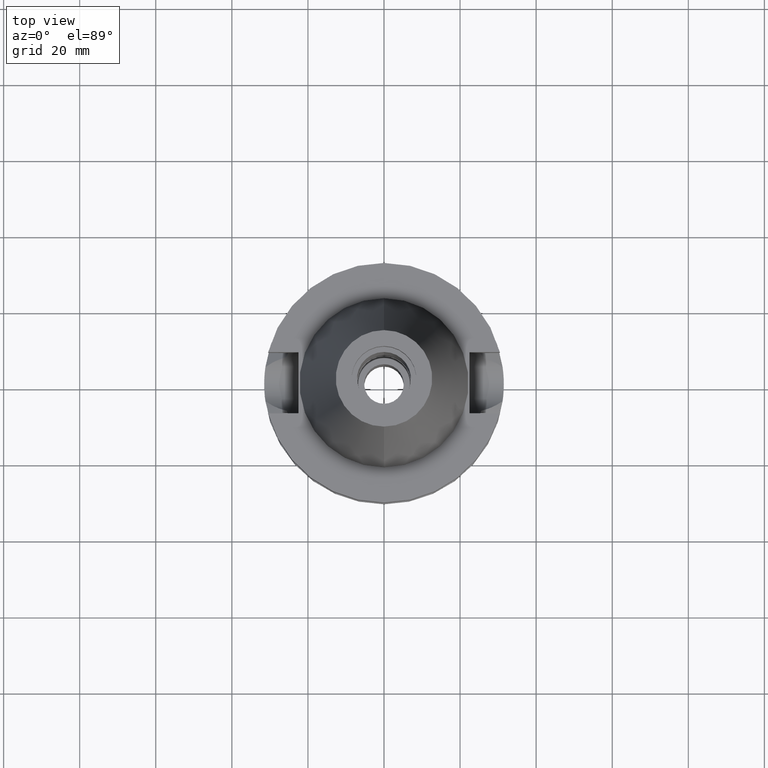
[diagram: clean part render]
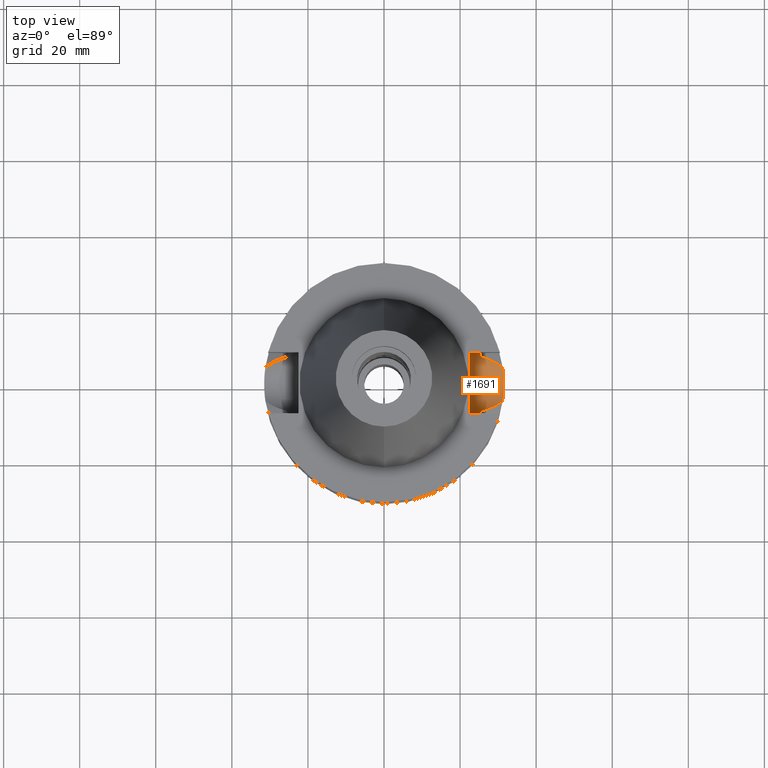
[diagram: same view with one face highlighted and labeled with its STEP entity id]
A machine part, top view. The second image highlights one B-rep face of the part: STEP entity #1691.
In plain terms, the highlighted cylindrical surface (edge-blend (fillet) strip) has radius 8.05 mm, axis along (1, 0, 0).
Its self-contained STEP definition (entity closure, byte-faithful):
#21 = ORIENTED_EDGE ( 'NONE', *, *, #611, .F. ) ;
#64 = CARTESIAN_POINT ( 'NONE',  ( 25.25396284446427231, -8.030907492774097989, -15.59360398733918451 ) ) ;
#82 = CARTESIAN_POINT ( 'NONE',  ( 31.41697254242929205, 2.284015593780573727, -22.66919255136408395 ) ) ;
#92 = CARTESIAN_POINT ( 'NONE',  ( 31.41183231690596855, -2.353663757155681768, -22.64823938059620545 ) ) ;
#101 = CARTESIAN_POINT ( 'NONE',  ( 27.17454037590290739, 6.578573253527897791, -19.59008326671374789 ) ) ;
#104 = CARTESIAN_POINT ( 'NONE',  ( 31.38993145521942196, -2.631335983111909194, -22.55874663190329699 ) ) ;
#111 = CARTESIAN_POINT ( 'NONE',  ( 28.61952987472136201, -5.988409593767684669, -20.32928853261340052 ) ) ;
#123 = ORIENTED_EDGE ( 'NONE', *, *, #240, .T. ) ;
#147 = CARTESIAN_POINT ( 'NONE',  ( 26.74381619295357027, -6.764686498412363136, -19.37043794591426860 ) ) ;
#174 = CARTESIAN_POINT ( 'NONE',  ( 25.53175183775000079, -7.097862220092999941, -18.74774300138999905 ) ) ;
#175 = CARTESIAN_POINT ( 'NONE',  ( 28.96951744265465223, -5.822993042047945877, -20.50791940928598933 ) ) ;
#184 = CARTESIAN_POINT ( 'NONE',  ( 25.34384339545047737, 7.742469616379023201, -17.15619314850085431 ) ) ;
#240 = EDGE_CURVE ( 'NONE', #2843, #1842, #382, .T. ) ;
#307 = CARTESIAN_POINT ( 'NONE',  ( 31.47113333814916558, 1.356640495464844109, -22.88731189956133960 ) ) ;
#329 = VERTEX_POINT ( 'NONE', #174 ) ;
#367 = CARTESIAN_POINT ( 'NONE',  ( 26.07074023271755081, 6.949703546257505415, -19.02464690278512549 ) ) ;
#382 = CIRCLE ( 'NONE', #1644, 8.050000000000000711 ) ;
#385 = CARTESIAN_POINT ( 'NONE',  ( 28.50305473222086761, -6.041666333603841643, -20.26983013936102296 ) ) ;
#388 = CARTESIAN_POINT ( 'NONE',  ( 28.07278660594125697, 6.231564949985281210, -20.04918483782999061 ) ) ;
#399 = CARTESIAN_POINT ( 'NONE',  ( 28.73759522508826336, -5.933525848792730706, -20.38955323646145956 ) ) ;
#405 = CARTESIAN_POINT ( 'NONE',  ( 25.32415423298265722, 7.806459850231466824, -16.91522840168126152 ) ) ;
#519 = CARTESIAN_POINT ( 'NONE',  ( 31.44587474454343123, 1.845305156204674057, -22.78628520795651013 ) ) ;
#572 = CARTESIAN_POINT ( 'NONE',  ( 27.52172890951022666, 6.449314522211760270, -19.76755776848042956 ) ) ;
#576 = CARTESIAN_POINT ( 'NONE',  ( 22.50000000000000000, 8.050000000000000711, -14.94999999999999929 ) ) ;
#579 = ORIENTED_EDGE ( 'NONE', *, *, #2338, .F. ) ;
#591 = CARTESIAN_POINT ( 'NONE',  ( 25.53175183775000079, 7.097862220092999941, -18.74774300138999905 ) ) ;
#594 = CARTESIAN_POINT ( 'NONE',  ( 31.40205153632035717, -2.481143929229181921, -22.60832449609155148 ) ) ;
#610 = CARTESIAN_POINT ( 'NONE',  ( 31.50000030226999570, 4.149986401503999830E-14, -23.00000138148999795 ) ) ;
#611 = EDGE_CURVE ( 'NONE', #747, #329, #1766, .T. ) ;
#613 = CARTESIAN_POINT ( 'NONE',  ( 25.36814761471071833, -7.663830712965396863, -17.48803584493440155 ) ) ;
#619 = CARTESIAN_POINT ( 'NONE',  ( 28.53006094587165009, -6.029395381357314676, -20.28361679709920651 ) ) ;
#621 = CARTESIAN_POINT ( 'NONE',  ( 22.50000000000000000, 8.050000000000000711, -14.94999999999999929 ) ) ;
#639 = CARTESIAN_POINT ( 'NONE',  ( 25.53175183775000079, -7.097862220092999941, -18.74774300138999905 ) ) ;
#675 = CARTESIAN_POINT ( 'NONE',  ( 31.17899877608999759, 4.485536235554000051, -21.63449434733000132 ) ) ;
#690 = CARTESIAN_POINT ( 'NONE',  ( 25.32840589093493122, 7.792665650289850809, -16.96921537928767165 ) ) ;
#744 = EDGE_CURVE ( 'NONE', #2497, #1437, #2634, .T. ) ;
#747 = VERTEX_POINT ( 'NONE', #1478 ) ;
#792 = CARTESIAN_POINT ( 'NONE',  ( 25.27268336911707891, -7.971811480182260823, -16.08115959834935182 ) ) ;
#796 = EDGE_LOOP ( 'NONE', ( #2671, #959, #579, #123, #1258, #900, #21, #2788, #2043 ) ) ;
#811 = CARTESIAN_POINT ( 'NONE',  ( 28.33698381954231849, 6.118439081508567412, -20.18427628523262385 ) ) ;
#830 = CARTESIAN_POINT ( 'NONE',  ( 31.35450367999056809, -3.025551444408663748, -22.41216023105940991 ) ) ;
#869 = CARTESIAN_POINT ( 'NONE',  ( 31.40782472142095827, -2.406637570808294768, -22.63189169567762704 ) ) ;
#885 = CARTESIAN_POINT ( 'NONE',  ( 31.33671814113429122, -3.204274407606030550, -22.33747821317260573 ) ) ;
#900 = ORIENTED_EDGE ( 'NONE', *, *, #1169, .T. ) ;
#911 = CARTESIAN_POINT ( 'NONE',  ( 22.50000000000000000, -8.050000000000000711, -14.94999999999999929 ) ) ;
#918 = CARTESIAN_POINT ( 'NONE',  ( 25.39161474380841099, 7.584925632688388042, -17.65165132602217213 ) ) ;
#951 = CARTESIAN_POINT ( 'NONE',  ( 25.24772266958000344, 8.049999999999997158, -15.58981081119148193 ) ) ;
#959 = ORIENTED_EDGE ( 'NONE', *, *, #2434, .T. ) ;
#1007 = CARTESIAN_POINT ( 'NONE',  ( 31.49278356123977929, 0.7711873031710440030, -22.97267690006522400 ) ) ;
#1061 = CARTESIAN_POINT ( 'NONE',  ( 31.41519654756639568, 2.308329250097893581, -22.66195675239495699 ) ) ;
#1065 = LINE ( 'NONE', #1823, #1689 ) ;
#1069 = CARTESIAN_POINT ( 'NONE',  ( 31.50000030227000636, -0.7652255575728066361, -23.00000000000000711 ) ) ;
#1083 = CARTESIAN_POINT ( 'NONE',  ( 25.31648647172268340, -7.831300037042765894, -16.81378020971403231 ) ) ;
#1092 = CARTESIAN_POINT ( 'NONE',  ( 30.47191086479360322, 5.021981663703273924, -21.27452016210246200 ) ) ;
#1104 = CARTESIAN_POINT ( 'NONE',  ( 25.31950905643225980, -7.821515286679934675, -16.85442525727312812 ) ) ;
#1138 = CARTESIAN_POINT ( 'NONE',  ( 25.29452398121202350, -7.902090651792934572, -16.48828405102940664 ) ) ;
#1147 = CARTESIAN_POINT ( 'NONE',  ( 25.33288843118665312, 7.778112047386424699, -17.02510900864709598 ) ) ;
#1167 = CARTESIAN_POINT ( 'NONE',  ( 25.32546474064105979, 7.802209548897429237, -16.93201787082077203 ) ) ;
#1169 = EDGE_CURVE ( 'NONE', #1535, #329, #1673, .T. ) ;
#1192 = CARTESIAN_POINT ( 'NONE',  ( 25.48480653792046624, 7.266729367422243513, -18.43213561436577308 ) ) ;
#1254 = CARTESIAN_POINT ( 'NONE',  ( 25.24772266958000344, 8.050000000000000711, -14.94999999999999929 ) ) ;
#1258 = ORIENTED_EDGE ( 'NONE', *, *, #2841, .F. ) ;
#1269 = CARTESIAN_POINT ( 'NONE',  ( 25.24772266958000344, -8.050000000000000711, -14.94999999999999929 ) ) ;
#1287 = CARTESIAN_POINT ( 'NONE',  ( 31.42563404118526549, 2.162357063185814887, -22.70443063270441897 ) ) ;
#1299 = CARTESIAN_POINT ( 'NONE',  ( 22.50000000000000000, 0.0000000000000000000, -14.94999999999999929 ) ) ;
#1307 = CARTESIAN_POINT ( 'NONE',  ( 27.47178058606564477, 6.468331823088089294, -19.74203692051577619 ) ) ;
#1437 = VERTEX_POINT ( 'NONE', #675 ) ;
#1478 = CARTESIAN_POINT ( 'NONE',  ( 31.17899877608999759, -4.485536235554000051, -21.63449434733000132 ) ) ;
#1482 = VERTEX_POINT ( 'NONE', #1254 ) ;
#1493 = B_SPLINE_CURVE_WITH_KNOTS ( 'NONE', 3,
 ( #1812, #1547, #2533, #885, #830, #1774, #104, #594, #869, #1608, #92, #1559, #2546, #1069, #610 ),
 .UNSPECIFIED., .F., .F.,
 ( 4, 2, 2, 1, 1, 1, 2, 2, 4 ),
 ( 0.0000000000000000000, 0.2500000000000082712, 0.3750000000000119349, 0.4375000000000139888, 0.4687500000000150990, 0.4843750000000152101, 0.4921875000000149880, 0.5000000000000147660, 1.000000000000000000 ),
 .UNSPECIFIED. ) ;
#1515 = DIRECTION ( 'NONE',  ( 0.0000000000000000000, 0.0000000000000000000, -1.000000000000000000 ) ) ;
#1524 = CARTESIAN_POINT ( 'NONE',  ( 31.50000030226999570, 4.149986401503999830E-14, -23.00000138148999795 ) ) ;
#1535 = VERTEX_POINT ( 'NONE', #2757 ) ;
#1547 = CARTESIAN_POINT ( 'NONE',  ( 31.23205437646064198, -4.116746326781118626, -21.88196564630578678 ) ) ;
#1559 = CARTESIAN_POINT ( 'NONE',  ( 31.41250465254752910, -2.344685119767524029, -22.65098129005167849 ) ) ;
#1572 = CARTESIAN_POINT ( 'NONE',  ( 29.60940031211595169, 5.537070779265078180, -20.83476571954136958 ) ) ;
#1586 = CARTESIAN_POINT ( 'NONE',  ( 28.51721398832023624, -6.035237504180527957, -20.27705846290945857 ) ) ;
#1608 = CARTESIAN_POINT ( 'NONE',  ( 31.41023747458196524, -2.374835805101922048, -22.64173436498663605 ) ) ;
#1611 = CARTESIAN_POINT ( 'NONE',  ( 25.30212919435223284, -7.877667573970344783, -16.61042047323939741 ) ) ;
#1614 = CARTESIAN_POINT ( 'NONE',  ( 31.17899877608999759, -4.485536235554000051, -21.63449434733000132 ) ) ;
#1644 = AXIS2_PLACEMENT_3D ( 'NONE', #2191, #2719, #1515 ) ;
#1673 = B_SPLINE_CURVE_WITH_KNOTS ( 'NONE', 3,
 ( #1269, #2234, #64, #792, #2697, #1138, #1611, #2304, #1083, #1104, #2605, #613, #2093, #3080 ),
 .UNSPECIFIED., .F., .F.,
 ( 4, 2, 2, 1, 1, 2, 2, 4 ),
 ( 0.0000000000000000000, 0.2499999999999888978, 0.3749999999999832911, 0.4374999999999816813, 0.4687499999999808487, 0.4843749999999804046, 0.4999999999999800160, 1.000000000000000000 ),
 .UNSPECIFIED. ) ;
#1689 = VECTOR ( 'NONE', #3010, 1000.000000000000000 ) ;
#1691 = ADVANCED_FACE ( 'NONE', ( #1827 ), #2836, .F. ) ;
#1715 = CARTESIAN_POINT ( 'NONE',  ( 31.36324472125325613, 3.008186402923568981, -22.45010119757649392 ) ) ;
#1763 = CARTESIAN_POINT ( 'NONE',  ( 31.46211241186140128, 1.552211430364588640, -22.85146869861923236 ) ) ;
#1764 = EDGE_CURVE ( 'NONE', #747, #2497, #1493, .T. ) ;
#1766 = B_SPLINE_CURVE_WITH_KNOTS ( 'NONE', 3,
 ( #1614, #2072, #3057, #2358, #2095, #1821, #175, #399, #111, #2808, #619, #1586, #2578, #385, #1836, #147, #639 ),
 .UNSPECIFIED., .F., .F.,
 ( 4, 2, 2, 1, 1, 1, 1, 1, 2, 2, 4 ),
 ( 0.0000000000000000000, 0.2499999999999278910, 0.3749999999998925859, 0.4374999999998743783, 0.4687499999998654965, 0.4843749999998604450, 0.4921874999998579470, 0.4960937499998566702, 0.4980468749998568367, 0.4999999999998570033, 1.000000000000000000 ),
 .UNSPECIFIED. ) ;
#1774 = CARTESIAN_POINT ( 'NONE',  ( 31.37855930987626252, -2.761990093459803397, -22.51192666837109257 ) ) ;
#1812 = CARTESIAN_POINT ( 'NONE',  ( 31.17899877608999759, -4.485536235554000051, -21.63449434733000132 ) ) ;
#1821 = CARTESIAN_POINT ( 'NONE',  ( 29.16108406474739922, -5.727078292551732730, -20.60566772621288578 ) ) ;
#1823 = CARTESIAN_POINT ( 'NONE',  ( 25.24772266958000344, -8.050000000000000711, -14.94999999999999929 ) ) ;
#1827 = FACE_OUTER_BOUND ( 'NONE', #796, .T. ) ;
#1836 = CARTESIAN_POINT ( 'NONE',  ( 27.73413391209855305, -6.390229313855593674, -19.87729119561073432 ) ) ;
#1842 = VERTEX_POINT ( 'NONE', #911 ) ;
#1892 = CARTESIAN_POINT ( 'NONE',  ( 25.44390410195637742, 7.408324269918076688, -18.11690676764972352 ) ) ;
#1916 = CARTESIAN_POINT ( 'NONE',  ( 25.27267991477270215, 7.973333693868347005, -16.24500092433180498 ) ) ;
#1971 = VERTEX_POINT ( 'NONE', #2241 ) ;
#1974 = CARTESIAN_POINT ( 'NONE',  ( 31.28511117664742969, 3.747948078124208049, -22.12944254164047564 ) ) ;
#1986 = B_SPLINE_CURVE_WITH_KNOTS ( 'NONE', 3,
 ( #2367, #1192, #1892, #918, #2632, #2131, #184, #1147, #690, #1167, #405, #1916, #951, #2397 ),
 .UNSPECIFIED., .F., .F.,
 ( 4, 2, 2, 1, 1, 2, 2, 4 ),
 ( 0.0000000000000000000, 0.2500000000000011657, 0.3750000000000028311, 0.4375000000000037748, 0.4687500000000027756, 0.4843750000000024425, 0.5000000000000019984, 1.000000000000000000 ),
 .UNSPECIFIED. ) ;
#2015 = CARTESIAN_POINT ( 'NONE',  ( 27.50746881412250744, 6.454750626354698539, -19.76027182294631501 ) ) ;
#2021 = CARTESIAN_POINT ( 'NONE',  ( 31.41418307691772682, 2.322078179488806793, -22.65782554032157137 ) ) ;
#2040 = DIRECTION ( 'NONE',  ( 0.0000000000000000000, 0.0000000000000000000, -1.000000000000000000 ) ) ;
#2043 = ORIENTED_EDGE ( 'NONE', *, *, #744, .T. ) ;
#2055 = CARTESIAN_POINT ( 'NONE',  ( 27.55673681590003810, 6.435922820680607614, -19.78544436919851890 ) ) ;
#2072 = CARTESIAN_POINT ( 'NONE',  ( 30.83533554958475875, -4.746262750229630178, -21.45953747424909963 ) ) ;
#2093 = CARTESIAN_POINT ( 'NONE',  ( 25.43786330456364553, -7.435589081429987424, -18.11654211998960662 ) ) ;
#2095 = CARTESIAN_POINT ( 'NONE',  ( 29.53456838489935521, -5.534047291044670303, -20.79621982321736340 ) ) ;
#2131 = CARTESIAN_POINT ( 'NONE',  ( 25.35408314255054663, 7.708964442631086378, -17.26963666352914117 ) ) ;
#2191 = CARTESIAN_POINT ( 'NONE',  ( 22.50000000000000000, 0.0000000000000000000, -14.94999999999999929 ) ) ;
#2234 = CARTESIAN_POINT ( 'NONE',  ( 25.24772266958000699, -8.050000000000000711, -15.26991324108734283 ) ) ;
#2241 = CARTESIAN_POINT ( 'NONE',  ( 25.53175183775000079, 7.097862220092999941, -18.74774300138999905 ) ) ;
#2254 = CARTESIAN_POINT ( 'NONE',  ( 31.41961539192766040, 2.247536052661643691, -22.67995511561548838 ) ) ;
#2281 = CARTESIAN_POINT ( 'NONE',  ( 27.32109224688774773, 6.525181171056278373, -19.66502942415984023 ) ) ;
#2304 = CARTESIAN_POINT ( 'NONE',  ( 25.31202572170775866, -7.845729406580135290, -16.75279821057739582 ) ) ;
#2338 = EDGE_CURVE ( 'NONE', #2843, #1482, #2766, .T. ) ;
#2358 = CARTESIAN_POINT ( 'NONE',  ( 29.77069029054985094, -5.403762031502717278, -20.91666183875459950 ) ) ;
#2367 = CARTESIAN_POINT ( 'NONE',  ( 25.53175183775000079, 7.097862220092999941, -18.74774300138999905 ) ) ;
#2397 = CARTESIAN_POINT ( 'NONE',  ( 25.24772266958000344, 8.050000000000000711, -14.94999999999999929 ) ) ;
#2434 = EDGE_CURVE ( 'NONE', #1971, #1482, #1986, .T. ) ;
#2497 = VERTEX_POINT ( 'NONE', #2893 ) ;
#2499 = CARTESIAN_POINT ( 'NONE',  ( 31.43707934141286842, 1.991785373593337960, -22.75083980001243589 ) ) ;
#2533 = CARTESIAN_POINT ( 'NONE',  ( 31.27811616776804371, -3.746663410109808190, -22.08609477296228008 ) ) ;
#2546 = CARTESIAN_POINT ( 'NONE',  ( 31.47113575803166796, -1.554964651851641122, -22.89006402801781093 ) ) ;
#2561 = CARTESIAN_POINT ( 'NONE',  ( 27.73039769508202923, 6.368427229418078817, -19.87418611113769273 ) ) ;
#2578 = CARTESIAN_POINT ( 'NONE',  ( 28.50864309581668721, -6.039130999120075671, -20.27268302101677477 ) ) ;
#2582 = CARTESIAN_POINT ( 'NONE',  ( 31.17899877608999759, 4.485536235554000051, -21.63449434733000132 ) ) ;
#2605 = CARTESIAN_POINT ( 'NONE',  ( 25.32118155423751560, -7.816096717212926315, -16.87652453452369627 ) ) ;
#2607 = B_SPLINE_CURVE_WITH_KNOTS ( 'NONE', 3,
 ( #2582, #1092, #1572, #811, #388, #2561, #2764, #2055, #3045, #572, #2015, #1307, #2281, #101, #2782, #367, #591 ),
 .UNSPECIFIED., .F., .F.,
 ( 4, 2, 2, 1, 2, 2, 1, 1, 2, 4 ),
 ( 0.0000000000000000000, 0.5000000000000074385, 0.6250000000000093259, 0.6562500000000097700, 0.6640625000000098810, 0.6679687500000102141, 0.6718750000000104361, 0.6875000000000101030, 0.7500000000000079936, 1.000000000000000000 ),
 .UNSPECIFIED. ) ;
#2632 = CARTESIAN_POINT ( 'NONE',  ( 25.37569567372544910, 7.637836187999782922, -17.49781209657168191 ) ) ;
#2634 = B_SPLINE_CURVE_WITH_KNOTS ( 'NONE', 3,
 ( #1524, #2954, #1007, #307, #1763, #519, #2499, #1287, #2254, #82, #1061, #2021, #1715, #1974, #3007 ),
 .UNSPECIFIED., .F., .F.,
 ( 4, 2, 2, 1, 1, 1, 2, 2, 4 ),
 ( 0.0000000000000000000, 0.2500000000000036637, 0.3750000000000054401, 0.4375000000000063283, 0.4687500000000066613, 0.4843750000000069389, 0.4921875000000072164, 0.5000000000000074385, 1.000000000000000000 ),
 .UNSPECIFIED. ) ;
#2671 = ORIENTED_EDGE ( 'NONE', *, *, #2853, .T. ) ;
#2697 = CARTESIAN_POINT ( 'NONE',  ( 25.28048358772242565, -7.947040743794929085, -16.24400980664070460 ) ) ;
#2719 = DIRECTION ( 'NONE',  ( -1.000000000000000000, 0.0000000000000000000, 0.0000000000000000000 ) ) ;
#2757 = CARTESIAN_POINT ( 'NONE',  ( 25.24772266958000344, -8.050000000000000711, -14.94999999999999929 ) ) ;
#2764 = CARTESIAN_POINT ( 'NONE',  ( 27.64404156775111332, 6.402358659449554068, -19.83005330034885105 ) ) ;
#2766 = LINE ( 'NONE', #576, #2991 ) ;
#2782 = CARTESIAN_POINT ( 'NONE',  ( 26.57860755754463611, 6.789478187167576451, -19.28514317307850590 ) ) ;
#2788 = ORIENTED_EDGE ( 'NONE', *, *, #1764, .T. ) ;
#2808 = CARTESIAN_POINT ( 'NONE',  ( 28.55997150534223650, -6.015750679437507742, -20.29888577633043312 ) ) ;
#2815 = DIRECTION ( 'NONE',  ( 1.000000000000000000, -1.551559937893000172E-14, 0.0000000000000000000 ) ) ;
#2836 = CYLINDRICAL_SURFACE ( 'NONE', #3081, 8.050000000000000711 ) ;
#2841 = EDGE_CURVE ( 'NONE', #1535, #1842, #1065, .T. ) ;
#2843 = VERTEX_POINT ( 'NONE', #621 ) ;
#2853 = EDGE_CURVE ( 'NONE', #1437, #1971, #2607, .T. ) ;
#2893 = CARTESIAN_POINT ( 'NONE',  ( 31.50000030226999570, 4.149986401503999830E-14, -23.00000138148999795 ) ) ;
#2954 = CARTESIAN_POINT ( 'NONE',  ( 31.50000030226998859, 0.3826090915251830205, -23.00000000000000000 ) ) ;
#2991 = VECTOR ( 'NONE', #2815, 1000.000000000000000 ) ;
#3007 = CARTESIAN_POINT ( 'NONE',  ( 31.17899877608999759, 4.485536235554000051, -21.63449434733000132 ) ) ;
#3010 = DIRECTION ( 'NONE',  ( -1.000000000000000000, -1.551559937893000172E-14, 0.0000000000000000000 ) ) ;
#3045 = CARTESIAN_POINT ( 'NONE',  ( 27.53048847287350398, 6.445969850440068427, -19.77203316947948508 ) ) ;
#3057 = CARTESIAN_POINT ( 'NONE',  ( 30.44041057306440479, -5.010859520948095280, -21.25820973796909286 ) ) ;
#3076 = DIRECTION ( 'NONE',  ( 1.000000000000000000, 0.0000000000000000000, 0.0000000000000000000 ) ) ;
#3080 = CARTESIAN_POINT ( 'NONE',  ( 25.53175183775000079, -7.097862220092999941, -18.74774300138999905 ) ) ;
#3081 = AXIS2_PLACEMENT_3D ( 'NONE', #1299, #3076, #2040 ) ;